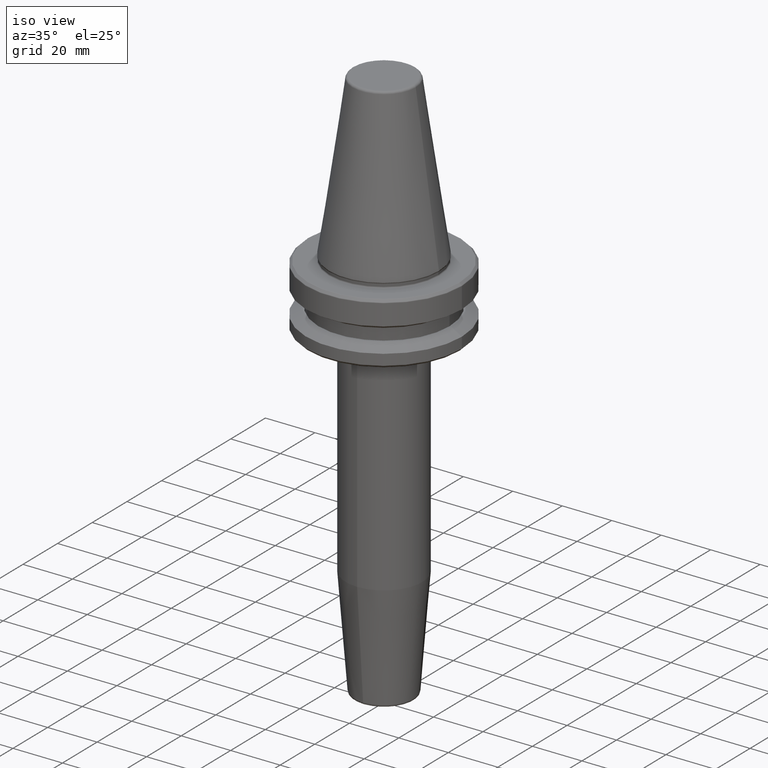
[diagram: clean part render]
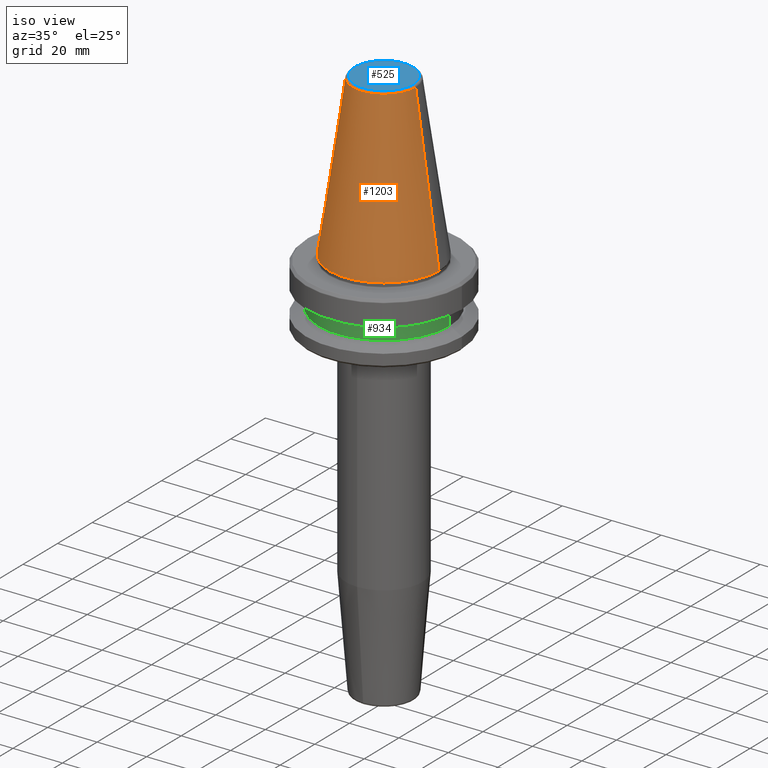
[diagram: same view with three faces highlighted in distinct colors, each labeled with its STEP entity id]
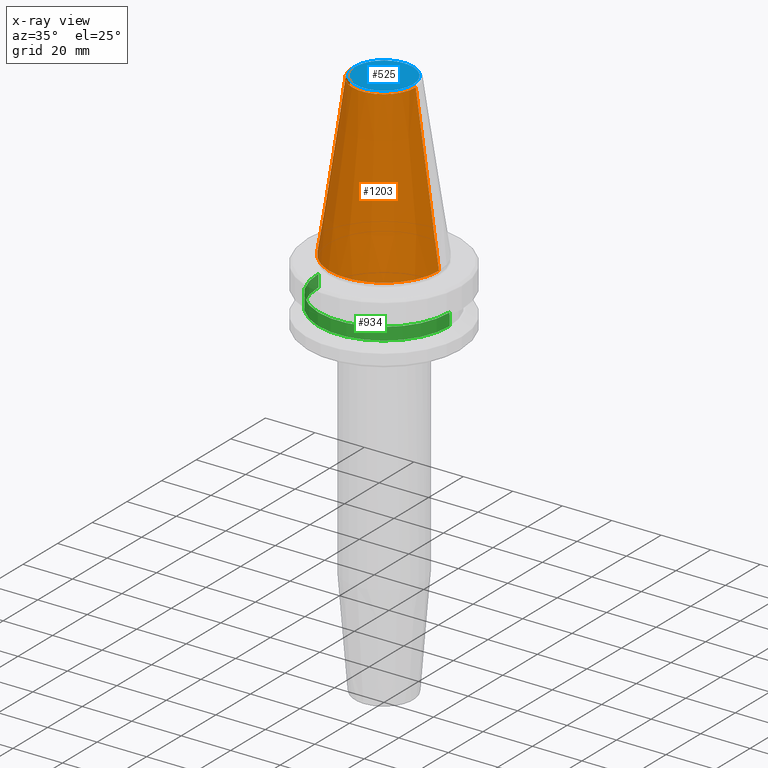
[diagram: x-ray of the same camera — body ghosted, the three highlighted faces saturated]
A machine part, iso view with three faces highlighted in distinct colors.
The next image is the same camera in x-ray (body ghosted, the three faces saturated) — at least one of them is partly hidden behind the body in this view.
Their STEP definitions:

[orange] entity #1203 — the highlighted conical surface has half-angle 8.297 deg.
#8 = AXIS2_PLACEMENT_3D ( 'NONE', #405, #899, #75 ) ;
#10 = CARTESIAN_POINT ( 'NONE',  ( 0.0000000000000000000, 0.0000000000000000000, 64.54430822726730800 ) ) ;
#17 = EDGE_CURVE ( 'NONE', #861, #243, #161, .T. ) ;
#75 = DIRECTION ( 'NONE',  ( 1.000000000000000000, 0.0000000000000000000, 0.0000000000000000000 ) ) ;
#94 = EDGE_CURVE ( 'NONE', #243, #365, #399, .T. ) ;
#99 = DIRECTION ( 'NONE',  ( -1.000000000000000000, 0.0000000000000000000, 0.0000000000000000000 ) ) ;
#146 = ORIENTED_EDGE ( 'NONE', *, *, #756, .F. ) ;
#161 = LINE ( 'NONE', #181, #1170 ) ;
#181 = CARTESIAN_POINT ( 'NONE',  ( -12.81219950706224800, 0.0000000000000000000, 64.54430822726730800 ) ) ;
#236 = CARTESIAN_POINT ( 'NONE',  ( 12.81219950706224800, 1.569041911636107800E-015, 64.54430822726730800 ) ) ;
#243 = VERTEX_POINT ( 'NONE', #439 ) ;
#264 = AXIS2_PLACEMENT_3D ( 'NONE', #788, #709, #368 ) ;
#268 = ORIENTED_EDGE ( 'NONE', *, *, #94, .T. ) ;
#291 = CARTESIAN_POINT ( 'NONE',  ( 22.22500000000000500, 0.0000000000000000000, 0.0000000000000000000 ) ) ;
#358 = EDGE_LOOP ( 'NONE', ( #146, #1168, #362, #268 ) ) ;
#362 = ORIENTED_EDGE ( 'NONE', *, *, #17, .T. ) ;
#365 = VERTEX_POINT ( 'NONE', #291 ) ;
#368 = DIRECTION ( 'NONE',  ( 1.000000000000000000, 0.0000000000000000000, 0.0000000000000000000 ) ) ;
#399 = CIRCLE ( 'NONE', #264, 22.22500000000000500 ) ;
#405 = CARTESIAN_POINT ( 'NONE',  ( 0.0000000000000000000, 0.0000000000000000000, 64.54430822726730800 ) ) ;
#421 = CONICAL_SURFACE ( 'NONE', #996, 12.81219950706224800, 0.1448138465474191100 ) ;
#422 = EDGE_CURVE ( 'NONE', #861, #1048, #469, .T. ) ;
#439 = CARTESIAN_POINT ( 'NONE',  ( -22.22500000000000500, 2.721777511104993200E-015, 0.0000000000000000000 ) ) ;
#469 = CIRCLE ( 'NONE', #8, 12.81219950706224800 ) ;
#510 = VECTOR ( 'NONE', #524, 1000.000000000000000 ) ;
#524 = DIRECTION ( 'NONE',  ( 0.1443082272673071000, 1.767266086135364600E-017, -0.9895327864921743500 ) ) ;
#588 = DIRECTION ( 'NONE',  ( 0.0000000000000000000, 0.0000000000000000000, -1.000000000000000000 ) ) ;
#640 = CARTESIAN_POINT ( 'NONE',  ( -12.81219950706224800, 0.0000000000000000000, 64.54430822726730800 ) ) ;
#709 = DIRECTION ( 'NONE',  ( -0.0000000000000000000, -0.0000000000000000000, 1.000000000000000000 ) ) ;
#723 = FACE_OUTER_BOUND ( 'NONE', #358, .T. ) ;
#756 = EDGE_CURVE ( 'NONE', #1048, #365, #809, .T. ) ;
#788 = CARTESIAN_POINT ( 'NONE',  ( 0.0000000000000000000, 0.0000000000000000000, 0.0000000000000000000 ) ) ;
#809 = LINE ( 'NONE', #236, #510 ) ;
#861 = VERTEX_POINT ( 'NONE', #640 ) ;
#899 = DIRECTION ( 'NONE',  ( -0.0000000000000000000, -0.0000000000000000000, 1.000000000000000000 ) ) ;
#964 = CARTESIAN_POINT ( 'NONE',  ( 12.81219950706224800, 2.145409711370550300E-015, 64.54430822726730800 ) ) ;
#979 = DIRECTION ( 'NONE',  ( -0.1443082272673071000, 0.0000000000000000000, -0.9895327864921743500 ) ) ;
#996 = AXIS2_PLACEMENT_3D ( 'NONE', #10, #588, #99 ) ;
#1048 = VERTEX_POINT ( 'NONE', #964 ) ;
#1168 = ORIENTED_EDGE ( 'NONE', *, *, #422, .F. ) ;
#1170 = VECTOR ( 'NONE', #979, 1000.000000000000000 ) ;
#1203 = ADVANCED_FACE ( 'NONE', ( #723 ), #421, .T. ) ;

[blue] entity #525 — the highlighted planar face has unit normal (0, -0, 1).
#27 = EDGE_CURVE ( 'NONE', #1154, #1087, #878, .T. ) ;
#56 = CARTESIAN_POINT ( 'NONE',  ( 0.0000000000000000000, 0.0000000000000000000, 65.40000000000000600 ) ) ;
#79 = DIRECTION ( 'NONE',  ( -0.0000000000000000000, -0.0000000000000000000, 1.000000000000000000 ) ) ;
#85 = FACE_OUTER_BOUND ( 'NONE', #1210, .T. ) ;
#228 = EDGE_CURVE ( 'NONE', #1087, #1154, #1053, .T. ) ;
#280 = CARTESIAN_POINT ( 'NONE',  ( -11.82266672057007100, 1.508450503654657300E-015, 65.40000000000000600 ) ) ;
#285 = CARTESIAN_POINT ( 'NONE',  ( 0.0000000000000000000, 0.0000000000000000000, 65.40000000000000600 ) ) ;
#290 = DIRECTION ( 'NONE',  ( 0.0000000000000000000, -0.0000000000000000000, 1.000000000000000000 ) ) ;
#525 = ADVANCED_FACE ( 'NONE', ( #85 ), #1171, .T. ) ;
#565 = ORIENTED_EDGE ( 'NONE', *, *, #228, .T. ) ;
#715 = DIRECTION ( 'NONE',  ( 1.000000000000000000, 0.0000000000000000000, 0.0000000000000000000 ) ) ;
#739 = AXIS2_PLACEMENT_3D ( 'NONE', #285, #290, #980 ) ;
#808 = DIRECTION ( 'NONE',  ( -0.0000000000000000000, -0.0000000000000000000, 1.000000000000000000 ) ) ;
#878 = CIRCLE ( 'NONE', #1078, 11.82266672057007100 ) ;
#976 = ORIENTED_EDGE ( 'NONE', *, *, #27, .T. ) ;
#980 = DIRECTION ( 'NONE',  ( 1.000000000000000000, 0.0000000000000000000, 0.0000000000000000000 ) ) ;
#1053 = CIRCLE ( 'NONE', #1182, 11.82266672057007100 ) ;
#1078 = AXIS2_PLACEMENT_3D ( 'NONE', #56, #808, #715 ) ;
#1085 = CARTESIAN_POINT ( 'NONE',  ( 11.82266672057007100, 0.0000000000000000000, 65.40000000000000600 ) ) ;
#1087 = VERTEX_POINT ( 'NONE', #280 ) ;
#1154 = VERTEX_POINT ( 'NONE', #1085 ) ;
#1157 = CARTESIAN_POINT ( 'NONE',  ( 0.0000000000000000000, 0.0000000000000000000, 65.40000000000000600 ) ) ;
#1171 = PLANE ( 'NONE',  #739 ) ;
#1182 = AXIS2_PLACEMENT_3D ( 'NONE', #1157, #79, #1263 ) ;
#1210 = EDGE_LOOP ( 'NONE', ( #976, #565 ) ) ;
#1263 = DIRECTION ( 'NONE',  ( 1.000000000000000000, 0.0000000000000000000, 0.0000000000000000000 ) ) ;

[green] entity #934 — the highlighted cylindrical surface (partial cylindrical patch) has radius 26.5 mm, axis along (-0, -0, 1).
#63 = DIRECTION ( 'NONE',  ( 1.000000000000000000, 0.0000000000000000000, 0.0000000000000000000 ) ) ;
#64 = FACE_OUTER_BOUND ( 'NONE', #186, .T. ) ;
#82 = VERTEX_POINT ( 'NONE', #1089 ) ;
#103 = DIRECTION ( 'NONE',  ( -0.0000000000000000000, -0.0000000000000000000, 1.000000000000000000 ) ) ;
#111 = CARTESIAN_POINT ( 'NONE',  ( -26.50000000000000000, 3.245314017740485800E-015, 69.75694866325665100 ) ) ;
#126 = VERTEX_POINT ( 'NONE', #427 ) ;
#175 = ORIENTED_EDGE ( 'NONE', *, *, #1236, .F. ) ;
#186 = EDGE_LOOP ( 'NONE', ( #175, #226, #192, #530 ) ) ;
#192 = ORIENTED_EDGE ( 'NONE', *, *, #746, .T. ) ;
#226 = ORIENTED_EDGE ( 'NONE', *, *, #914, .T. ) ;
#257 = VERTEX_POINT ( 'NONE', #1207 ) ;
#294 = CYLINDRICAL_SURFACE ( 'NONE', #817, 26.50000000000000000 ) ;
#374 = CIRCLE ( 'NONE', #547, 26.50000000000000000 ) ;
#427 = CARTESIAN_POINT ( 'NONE',  ( -26.50000000000000000, 3.245314017740485800E-015, -19.10000000000000500 ) ) ;
#530 = ORIENTED_EDGE ( 'NONE', *, *, #1175, .F. ) ;
#547 = AXIS2_PLACEMENT_3D ( 'NONE', #552, #1247, #649 ) ;
#552 = CARTESIAN_POINT ( 'NONE',  ( 0.0000000000000000000, 0.0000000000000000000, -19.10000000000000500 ) ) ;
#649 = DIRECTION ( 'NONE',  ( 1.000000000000000000, 0.0000000000000000000, 0.0000000000000000000 ) ) ;
#691 = CARTESIAN_POINT ( 'NONE',  ( 0.0000000000000000000, 0.0000000000000000000, -14.10000000000000100 ) ) ;
#699 = DIRECTION ( 'NONE',  ( -0.0000000000000000000, -0.0000000000000000000, 1.000000000000000000 ) ) ;
#746 = EDGE_CURVE ( 'NONE', #829, #82, #1069, .T. ) ;
#759 = CARTESIAN_POINT ( 'NONE',  ( 0.0000000000000000000, 0.0000000000000000000, 69.75694866325665100 ) ) ;
#799 = DIRECTION ( 'NONE',  ( 1.000000000000000000, 0.0000000000000000000, 0.0000000000000000000 ) ) ;
#817 = AXIS2_PLACEMENT_3D ( 'NONE', #759, #851, #63 ) ;
#829 = VERTEX_POINT ( 'NONE', #1131 ) ;
#851 = DIRECTION ( 'NONE',  ( -0.0000000000000000000, -0.0000000000000000000, 1.000000000000000000 ) ) ;
#857 = AXIS2_PLACEMENT_3D ( 'NONE', #691, #103, #799 ) ;
#914 = EDGE_CURVE ( 'NONE', #126, #829, #374, .T. ) ;
#917 = CARTESIAN_POINT ( 'NONE',  ( 26.50000000000000000, 0.0000000000000000000, 69.75694866325665100 ) ) ;
#923 = LINE ( 'NONE', #111, #1180 ) ;
#934 = ADVANCED_FACE ( 'NONE', ( #64 ), #294, .T. ) ;
#981 = CIRCLE ( 'NONE', #857, 26.50000000000000000 ) ;
#1044 = VECTOR ( 'NONE', #1220, 1000.000000000000000 ) ;
#1069 = LINE ( 'NONE', #917, #1044 ) ;
#1089 = CARTESIAN_POINT ( 'NONE',  ( 26.50000000000000000, 0.0000000000000000000, -14.10000000000000100 ) ) ;
#1131 = CARTESIAN_POINT ( 'NONE',  ( 26.50000000000000000, 0.0000000000000000000, -19.10000000000000500 ) ) ;
#1175 = EDGE_CURVE ( 'NONE', #257, #82, #981, .T. ) ;
#1180 = VECTOR ( 'NONE', #699, 1000.000000000000000 ) ;
#1207 = CARTESIAN_POINT ( 'NONE',  ( -26.50000000000000000, 3.245314017740485800E-015, -14.10000000000000100 ) ) ;
#1220 = DIRECTION ( 'NONE',  ( -0.0000000000000000000, -0.0000000000000000000, 1.000000000000000000 ) ) ;
#1236 = EDGE_CURVE ( 'NONE', #126, #257, #923, .T. ) ;
#1247 = DIRECTION ( 'NONE',  ( -0.0000000000000000000, -0.0000000000000000000, 1.000000000000000000 ) ) ;